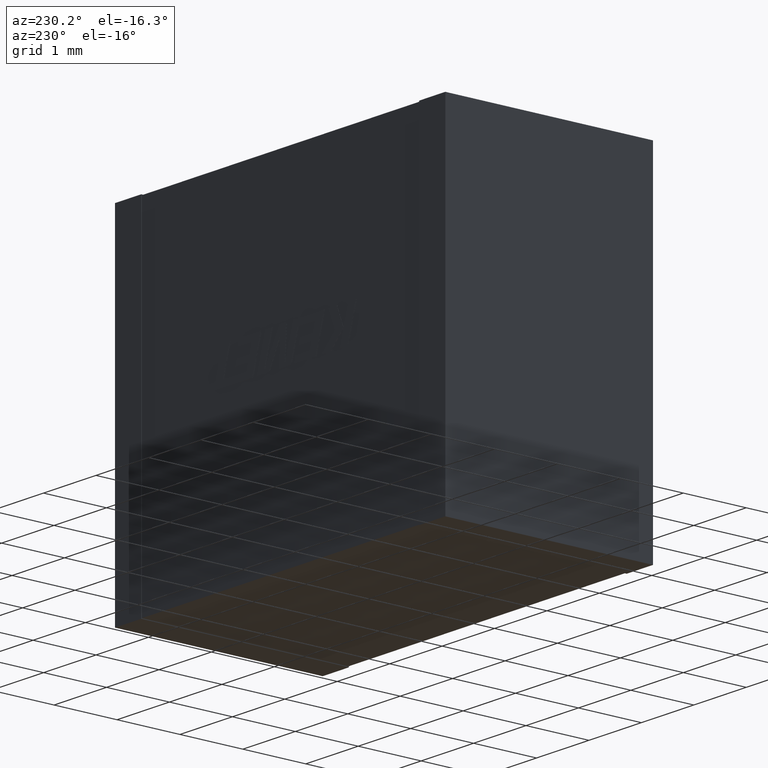
[diagram: clean part render]
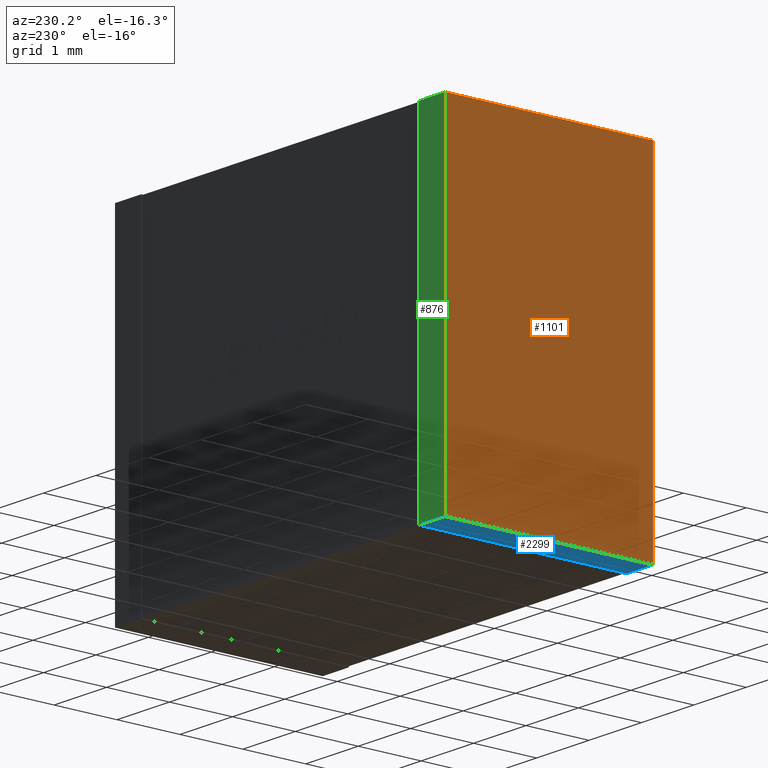
[diagram: same view with three faces highlighted in distinct colors, each labeled with its STEP entity id]
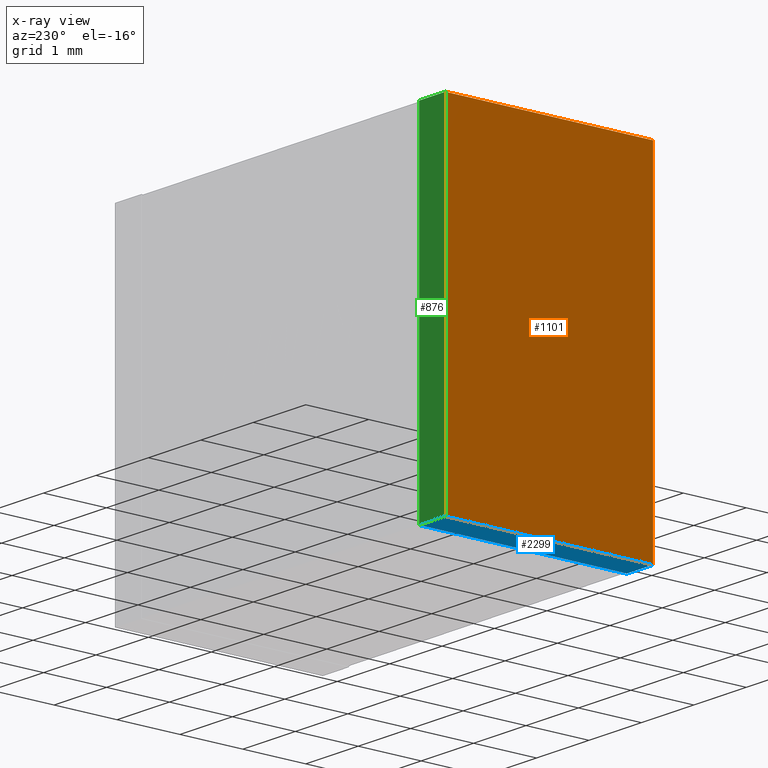
[diagram: x-ray of the same camera — body ghosted, the three highlighted faces saturated]
A machine part, auxiliary view with three faces highlighted in distinct colors.
The next image is the same camera in x-ray (body ghosted, the three faces saturated) — at least one of them is partly hidden behind the body in this view.
Their STEP definitions:

[orange] entity #1101 — the highlighted planar face has unit normal (-1, 0, 0).
#176 = CARTESIAN_POINT ( 'NONE',  ( -0.01000000000000002623, 3.289999999999999591, -5.390000000000000568 ) ) ;
#181 = DIRECTION ( 'NONE',  ( 0.000000000000000000, -1.000000000000000000, 0.000000000000000000 ) ) ;
#224 = ORIENTED_EDGE ( 'NONE', *, *, #1466, .T. ) ;
#349 = CARTESIAN_POINT ( 'NONE',  ( -0.01000000000000002623, 3.289999999999999591, -5.390000000000000568 ) ) ;
#402 = VECTOR ( 'NONE', #181, 1000.000000000000000 ) ;
#417 = ORIENTED_EDGE ( 'NONE', *, *, #1767, .T. ) ;
#489 = VECTOR ( 'NONE', #1513, 1000.000000000000000 ) ;
#579 = CARTESIAN_POINT ( 'NONE',  ( -0.01000000000000002623, 3.290000000000000036, 0.01000000000000000021 ) ) ;
#725 = VERTEX_POINT ( 'NONE', #1848 ) ;
#738 = VERTEX_POINT ( 'NONE', #349 ) ;
#930 = AXIS2_PLACEMENT_3D ( 'NONE', #1354, #2353, #2366 ) ;
#939 = LINE ( 'NONE', #1308, #489 ) ;
#984 = ORIENTED_EDGE ( 'NONE', *, *, #1720, .T. ) ;
#1101 = ADVANCED_FACE ( 'NONE', ( #2284 ), #1307, .T. ) ;
#1129 = ORIENTED_EDGE ( 'NONE', *, *, #1674, .T. ) ;
#1141 = LINE ( 'NONE', #1918, #402 ) ;
#1307 = PLANE ( 'NONE',  #930 ) ;
#1308 = CARTESIAN_POINT ( 'NONE',  ( -0.01000000000000002623, -0.01000000000000000021, -5.390000000000000568 ) ) ;
#1354 = CARTESIAN_POINT ( 'NONE',  ( -0.01000000000000002623, 0.000000000000000000, 0.000000000000000000 ) ) ;
#1383 = LINE ( 'NONE', #579, #2033 ) ;
#1395 = DIRECTION ( 'NONE',  ( -0.000000000000000000, 1.000000000000000000, -7.340952209537270016E-17 ) ) ;
#1466 = EDGE_CURVE ( 'NONE', #738, #2227, #1141, .T. ) ;
#1513 = DIRECTION ( 'NONE',  ( 0.000000000000000000, -3.137159063904815678E-19, 1.000000000000000000 ) ) ;
#1525 = LINE ( 'NONE', #176, #2400 ) ;
#1674 = EDGE_CURVE ( 'NONE', #725, #738, #1525, .T. ) ;
#1690 = DIRECTION ( 'NONE',  ( -0.000000000000000000, -8.031127203596329369E-17, -1.000000000000000000 ) ) ;
#1720 = EDGE_CURVE ( 'NONE', #2227, #2367, #939, .T. ) ;
#1767 = EDGE_CURVE ( 'NONE', #2367, #725, #1383, .T. ) ;
#1848 = CARTESIAN_POINT ( 'NONE',  ( -0.01000000000000002623, 3.290000000000000036, 0.01000000000000000021 ) ) ;
#1918 = CARTESIAN_POINT ( 'NONE',  ( -0.01000000000000002623, 3.289999999999999591, -5.390000000000000568 ) ) ;
#1981 = CARTESIAN_POINT ( 'NONE',  ( -0.01000000000000002623, -0.01000000000000000021, -5.390000000000000568 ) ) ;
#2033 = VECTOR ( 'NONE', #1395, 1000.000000000000000 ) ;
#2227 = VERTEX_POINT ( 'NONE', #1981 ) ;
#2252 = CARTESIAN_POINT ( 'NONE',  ( -0.01000000000000002623, -0.01000000000000000194, 0.01000000000000024307 ) ) ;
#2284 = FACE_OUTER_BOUND ( 'NONE', #2375, .T. ) ;
#2353 = DIRECTION ( 'NONE',  ( -1.000000000000000000, 0.000000000000000000, 0.000000000000000000 ) ) ;
#2366 = DIRECTION ( 'NONE',  ( 0.000000000000000000, 0.000000000000000000, 1.000000000000000000 ) ) ;
#2367 = VERTEX_POINT ( 'NONE', #2252 ) ;
#2375 = EDGE_LOOP ( 'NONE', ( #224, #984, #417, #1129 ) ) ;
#2400 = VECTOR ( 'NONE', #1690, 1000.000000000000000 ) ;

[blue] entity #2299 — the highlighted planar face has unit normal (0, 0, 1).
#158 = EDGE_CURVE ( 'NONE', #2227, #750, #663, .T. ) ;
#181 = DIRECTION ( 'NONE',  ( 0.000000000000000000, -1.000000000000000000, 0.000000000000000000 ) ) ;
#349 = CARTESIAN_POINT ( 'NONE',  ( -0.01000000000000002623, 3.289999999999999591, -5.390000000000000568 ) ) ;
#364 = VECTOR ( 'NONE', #619, 1000.000000000000000 ) ;
#402 = VECTOR ( 'NONE', #181, 1000.000000000000000 ) ;
#538 = CARTESIAN_POINT ( 'NONE',  ( 0.4899999999999999911, -0.01000000000000000021, -5.390000000000000568 ) ) ;
#619 = DIRECTION ( 'NONE',  ( 1.000000000000000000, -0.000000000000000000, -0.000000000000000000 ) ) ;
#622 = FACE_OUTER_BOUND ( 'NONE', #2040, .T. ) ;
#663 = LINE ( 'NONE', #2011, #2175 ) ;
#721 = ORIENTED_EDGE ( 'NONE', *, *, #1925, .T. ) ;
#738 = VERTEX_POINT ( 'NONE', #349 ) ;
#750 = VERTEX_POINT ( 'NONE', #538 ) ;
#848 = VERTEX_POINT ( 'NONE', #2137 ) ;
#892 = AXIS2_PLACEMENT_3D ( 'NONE', #1071, #902, #1257 ) ;
#902 = DIRECTION ( 'NONE',  ( 0.000000000000000000, 0.000000000000000000, 1.000000000000000000 ) ) ;
#1019 = VECTOR ( 'NONE', #1085, 1000.000000000000000 ) ;
#1071 = CARTESIAN_POINT ( 'NONE',  ( -0.01000000000000002623, 3.289999999999999591, -5.390000000000000568 ) ) ;
#1085 = DIRECTION ( 'NONE',  ( 0.000000000000000000, -1.000000000000000000, 0.000000000000000000 ) ) ;
#1141 = LINE ( 'NONE', #1918, #402 ) ;
#1257 = DIRECTION ( 'NONE',  ( 1.000000000000000000, 0.000000000000000000, -0.000000000000000000 ) ) ;
#1338 = ORIENTED_EDGE ( 'NONE', *, *, #1466, .F. ) ;
#1466 = EDGE_CURVE ( 'NONE', #738, #2227, #1141, .T. ) ;
#1500 = EDGE_CURVE ( 'NONE', #738, #848, #1624, .T. ) ;
#1567 = CARTESIAN_POINT ( 'NONE',  ( -0.01000000000000002623, 3.289999999999999591, -5.390000000000000568 ) ) ;
#1624 = LINE ( 'NONE', #1567, #364 ) ;
#1775 = PLANE ( 'NONE',  #892 ) ;
#1834 = LINE ( 'NONE', #1844, #1019 ) ;
#1844 = CARTESIAN_POINT ( 'NONE',  ( 0.4899999999999999911, 3.289999999999999591, -5.390000000000000568 ) ) ;
#1918 = CARTESIAN_POINT ( 'NONE',  ( -0.01000000000000002623, 3.289999999999999591, -5.390000000000000568 ) ) ;
#1925 = EDGE_CURVE ( 'NONE', #848, #750, #1834, .T. ) ;
#1968 = DIRECTION ( 'NONE',  ( 1.000000000000000000, -0.000000000000000000, -0.000000000000000000 ) ) ;
#1981 = CARTESIAN_POINT ( 'NONE',  ( -0.01000000000000002623, -0.01000000000000000021, -5.390000000000000568 ) ) ;
#2011 = CARTESIAN_POINT ( 'NONE',  ( -0.01000000000000002623, -0.01000000000000000021, -5.390000000000000568 ) ) ;
#2040 = EDGE_LOOP ( 'NONE', ( #721, #2152, #1338, #2124 ) ) ;
#2124 = ORIENTED_EDGE ( 'NONE', *, *, #1500, .T. ) ;
#2137 = CARTESIAN_POINT ( 'NONE',  ( 0.4899999999999999911, 3.289999999999999591, -5.390000000000000568 ) ) ;
#2152 = ORIENTED_EDGE ( 'NONE', *, *, #158, .F. ) ;
#2175 = VECTOR ( 'NONE', #1968, 1000.000000000000000 ) ;
#2227 = VERTEX_POINT ( 'NONE', #1981 ) ;
#2299 = ADVANCED_FACE ( 'NONE', ( #622 ), #1775, .F. ) ;

[green] entity #876 — the highlighted planar face has unit normal (0, -1, 0).
#94 = ORIENTED_EDGE ( 'NONE', *, *, #1956, .T. ) ;
#176 = CARTESIAN_POINT ( 'NONE',  ( -0.01000000000000002623, 3.289999999999999591, -5.390000000000000568 ) ) ;
#249 = EDGE_CURVE ( 'NONE', #1444, #848, #1246, .T. ) ;
#282 = CARTESIAN_POINT ( 'NONE',  ( 0.4899999999999999911, 3.289999999999999591, -5.390000000000000568 ) ) ;
#302 = FACE_OUTER_BOUND ( 'NONE', #1698, .T. ) ;
#349 = CARTESIAN_POINT ( 'NONE',  ( -0.01000000000000002623, 3.289999999999999591, -5.390000000000000568 ) ) ;
#362 = AXIS2_PLACEMENT_3D ( 'NONE', #1461, #2238, #691 ) ;
#364 = VECTOR ( 'NONE', #619, 1000.000000000000000 ) ;
#491 = VECTOR ( 'NONE', #1408, 1000.000000000000000 ) ;
#619 = DIRECTION ( 'NONE',  ( 1.000000000000000000, -0.000000000000000000, -0.000000000000000000 ) ) ;
#641 = CARTESIAN_POINT ( 'NONE',  ( -0.01000000000000002623, 3.290000000000000036, 0.01000000000000000021 ) ) ;
#691 = DIRECTION ( 'NONE',  ( 0.000000000000000000, -8.031127203596330602E-17, -1.000000000000000000 ) ) ;
#725 = VERTEX_POINT ( 'NONE', #1848 ) ;
#738 = VERTEX_POINT ( 'NONE', #349 ) ;
#747 = CARTESIAN_POINT ( 'NONE',  ( 0.4899999999999999911, 3.290000000000000036, 0.01000000000000000021 ) ) ;
#848 = VERTEX_POINT ( 'NONE', #2137 ) ;
#876 = ADVANCED_FACE ( 'NONE', ( #302 ), #1086, .F. ) ;
#1086 = PLANE ( 'NONE',  #362 ) ;
#1124 = VECTOR ( 'NONE', #2022, 1000.000000000000000 ) ;
#1205 = ORIENTED_EDGE ( 'NONE', *, *, #1500, .F. ) ;
#1246 = LINE ( 'NONE', #282, #1124 ) ;
#1408 = DIRECTION ( 'NONE',  ( 1.000000000000000000, -0.000000000000000000, -0.000000000000000000 ) ) ;
#1444 = VERTEX_POINT ( 'NONE', #747 ) ;
#1461 = CARTESIAN_POINT ( 'NONE',  ( -0.01000000000000002623, 3.289999999999999591, -5.390000000000000568 ) ) ;
#1500 = EDGE_CURVE ( 'NONE', #738, #848, #1624, .T. ) ;
#1525 = LINE ( 'NONE', #176, #2400 ) ;
#1527 = ORIENTED_EDGE ( 'NONE', *, *, #1674, .F. ) ;
#1567 = CARTESIAN_POINT ( 'NONE',  ( -0.01000000000000002623, 3.289999999999999591, -5.390000000000000568 ) ) ;
#1624 = LINE ( 'NONE', #1567, #364 ) ;
#1633 = LINE ( 'NONE', #641, #491 ) ;
#1674 = EDGE_CURVE ( 'NONE', #725, #738, #1525, .T. ) ;
#1690 = DIRECTION ( 'NONE',  ( -0.000000000000000000, -8.031127203596329369E-17, -1.000000000000000000 ) ) ;
#1698 = EDGE_LOOP ( 'NONE', ( #2349, #1205, #1527, #94 ) ) ;
#1848 = CARTESIAN_POINT ( 'NONE',  ( -0.01000000000000002623, 3.290000000000000036, 0.01000000000000000021 ) ) ;
#1956 = EDGE_CURVE ( 'NONE', #725, #1444, #1633, .T. ) ;
#2022 = DIRECTION ( 'NONE',  ( -0.000000000000000000, -8.031127203596329369E-17, -1.000000000000000000 ) ) ;
#2137 = CARTESIAN_POINT ( 'NONE',  ( 0.4899999999999999911, 3.289999999999999591, -5.390000000000000568 ) ) ;
#2238 = DIRECTION ( 'NONE',  ( 0.000000000000000000, -1.000000000000000000, 8.031127203596330602E-17 ) ) ;
#2349 = ORIENTED_EDGE ( 'NONE', *, *, #249, .T. ) ;
#2400 = VECTOR ( 'NONE', #1690, 1000.000000000000000 ) ;